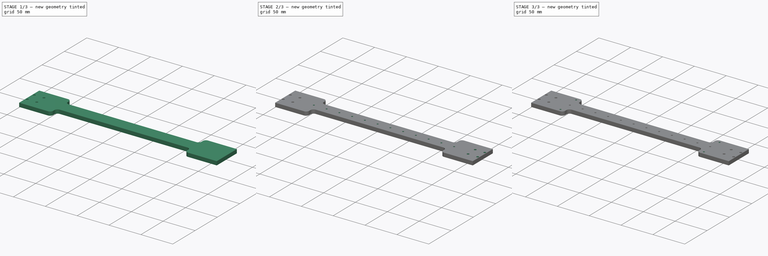
[diagram: build sequence overview — one tinted view per stage of 3, left to right]
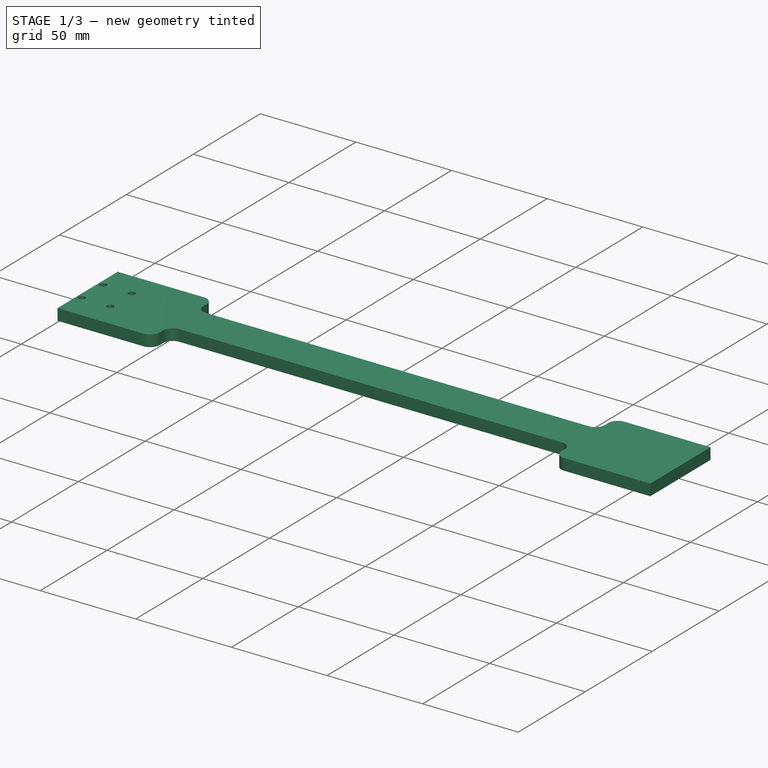
[diagram: stage 1 of 3 — iso view after this stage's code; geometry added in this stage tinted green]
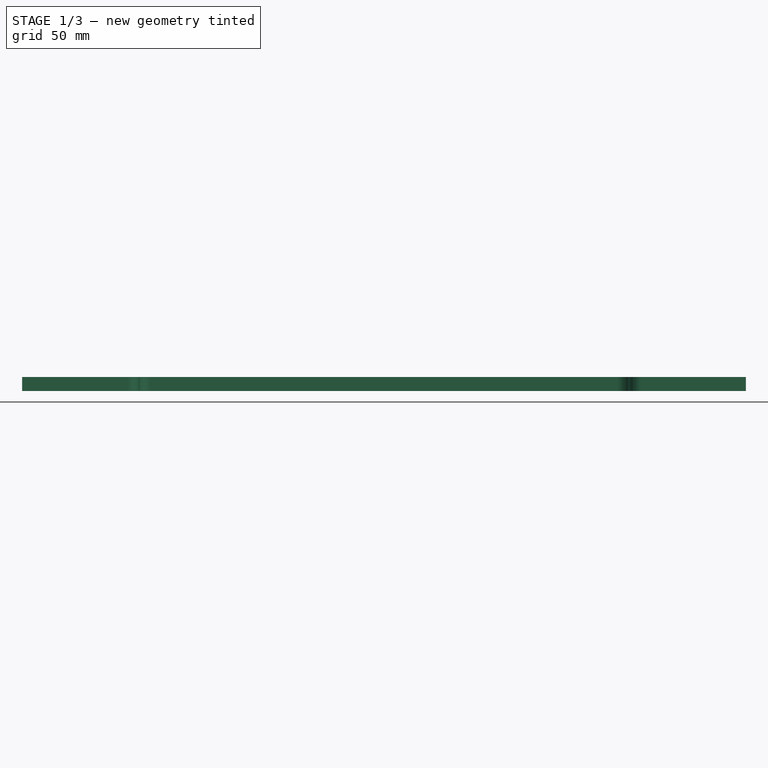
[diagram: stage 1 of 3 — front view after this stage's code; geometry added in this stage tinted green]
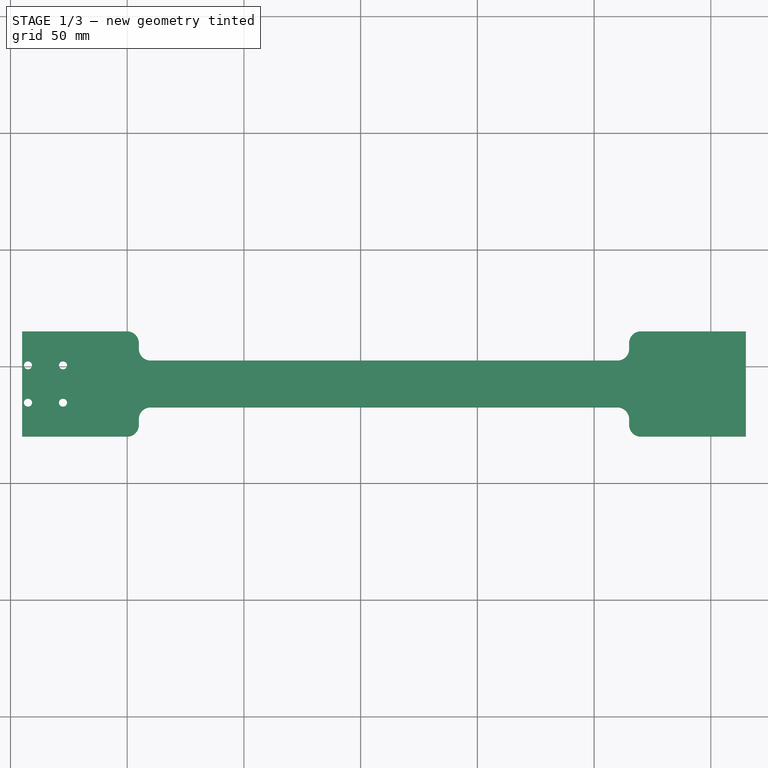
[diagram: stage 1 of 3 — top view after this stage's code; geometry added in this stage tinted green]
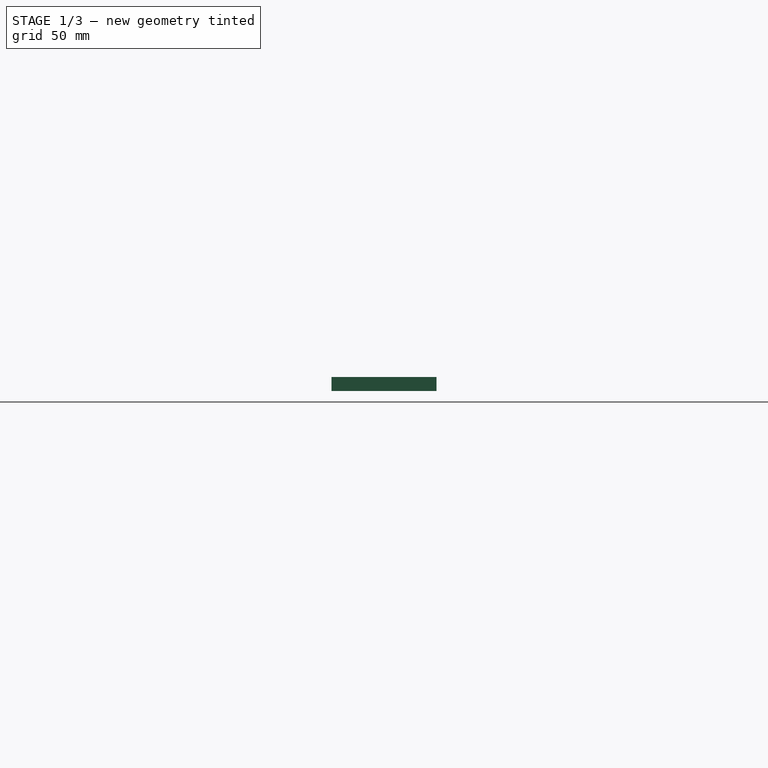
[diagram: stage 1 of 3 — right view after this stage's code; geometry added in this stage tinted green]
FCSTD DOCUMENT  (FreeCAD 0.18R16117 (Git))
Label: CoreXY
License: All rights reserved
LicenseURL: http://en.wikipedia.org/wiki/All_rights_reserved
objects: Sketcher::SketchObject×10, PartDesign::Pocket×7, PartDesign::Mirrored×6, PartDesign::ShapeBinder×2, PartDesign::Pad×2, PartDesign::LinearPattern×2, PartDesign::Body×2, PartDesign::MultiTransform×1
note: 41 computed .brp shape members not serialized (recipe doc carries the construction recipe); baked Part::Feature solids carry a one-line shape summary decoded from their .brp

FEATURE [Sketcher::SketchObject] Sketch008  label="Dimensions"
  MapMode = 5
  Support = -> [XY_Plane]
  sketch-geometry (8):
    g0: LineSegment StartX=0 StartY=0 StartZ=0 EndX=320 EndY=0 EndZ=0
    g1: LineSegment StartX=320 StartY=0 StartZ=0 EndX=320 EndY=320 EndZ=0
    g2: LineSegment StartX=320 StartY=320 StartZ=0 EndX=0 EndY=320 EndZ=0
    g3: LineSegment StartX=0 StartY=320 StartZ=0 EndX=0 EndY=0 EndZ=0
    g4: LineSegment StartX=15 StartY=320 StartZ=0 EndX=15 EndY=0 EndZ=0
    g5: LineSegment StartX=160 StartY=320 StartZ=0 EndX=160 EndY=0 EndZ=0
    g6: LineSegment StartX=32.5 StartY=320 StartZ=0 EndX=32.5 EndY=0 EndZ=0
    g7: LineSegment StartX=42.5 StartY=320 StartZ=0 EndX=42.5 EndY=0 EndZ=0
  constraints (27):
    c: Coincident(g0,g1)
    c: Coincident(g1,g2)
    c: Coincident(g2,g3)
    c: Coincident(g3,g0)
    c: Horizontal(g0)
    c: Horizontal(g2)
    c: Vertical(g1)
    c: Vertical(g3)
    c: Distance(g0) = 320
    c: Distance(g3) = 320
    c: PointOnObject(g4,g2)
    c: PointOnObject(g4,g0)
    c: Vertical(g4)
    c: DistanceX(g0,g4) = 15
    c: DistanceX(g0,g-1) = 0
    c: DistanceY(g0,g-1) = 0
    c: PointOnObject(g5,g2)
    c: Vertical(g5)
    c: Symmetric(g0,g0,g5)
    c: PointOnObject(g6,g2)
    c: PointOnObject(g6,g0)
    c: Vertical(g6)
    c: DistanceX(g4,g6) = 17.5
    c: PointOnObject(g7,g2)
    c: PointOnObject(g7,g0)
    c: Vertical(g7)
    c: DistanceX(g6,g7) = 10
FEATURE [PartDesign::ShapeBinder] ShapeBinder  label="Dimensions_ShapeBinder_Gantry"
  Support = -> [Sketch008]
  TraceSupport = false
FEATURE [Sketcher::SketchObject] Sketch004  label="GantryBase"
  ExternalGeometry = -> [ShapeBinder]
  MapMode = 5
  Support = -> [XY_Plane001]
  sketch-geometry (21):
    g0: LineSegment StartX=5 StartY=70 StartZ=0 EndX=5 EndY=115 EndZ=0
    g1: LineSegment StartX=5 StartY=115 StartZ=0 EndX=50 EndY=115 EndZ=0
    g2: LineSegment StartX=60 StartY=102.5 StartZ=0 EndX=260 EndY=102.5 EndZ=0
    g3: LineSegment StartX=270 StartY=115 StartZ=0 EndX=315 EndY=115 EndZ=0
    g4: LineSegment StartX=315 StartY=115 StartZ=0 EndX=315 EndY=70 EndZ=0
    g5: LineSegment StartX=315 StartY=70 StartZ=0 EndX=270 EndY=70 EndZ=0
    g6: LineSegment StartX=260 StartY=82.5 StartZ=0 EndX=60 EndY=82.5 EndZ=0
    g7: LineSegment StartX=50 StartY=70 StartZ=0 EndX=5 EndY=70 EndZ=0
    g8: LineSegment StartX=5 StartY=92.5 StartZ=0 EndX=315 EndY=92.5 EndZ=0
    g9: ArcOfCircle CenterX=50 CenterY=75 CenterZ=0 NormalX=0 NormalY=0 NormalZ=1 AngleXU=0 Radius=5 StartAngle=4.71239 EndAngle=6.28319
    g10: ArcOfCircle CenterX=60 CenterY=77.5 CenterZ=0 NormalX=0 NormalY=0 NormalZ=1 AngleXU=0 Radius=5 StartAngle=1.5708 EndAngle=3.14159
    g11: LineSegment StartX=55 StartY=77.5 StartZ=0 EndX=55 EndY=75 EndZ=0
    g12: ArcOfCircle CenterX=50 CenterY=110 CenterZ=0 NormalX=0 NormalY=0 NormalZ=1 AngleXU=0 Radius=5 StartAngle=0 EndAngle=1.5708
    g13: ArcOfCircle CenterX=60 CenterY=107.5 CenterZ=0 NormalX=0 NormalY=0 NormalZ=1 AngleXU=0 Radius=5 StartAngle=3.14159 EndAngle=4.71239
    g14: LineSegment StartX=55 StartY=110 StartZ=0 EndX=55 EndY=107.5 EndZ=0
    g15: ArcOfCircle CenterX=270 CenterY=110 CenterZ=0 NormalX=0 NormalY=0 NormalZ=1 AngleXU=0 Radius=5 StartAngle=1.5708 EndAngle=3.14159
    g16: ArcOfCircle CenterX=260 CenterY=107.5 CenterZ=0 NormalX=0 NormalY=0 NormalZ=1 AngleXU=0 Radius=5 StartAngle=4.71239 EndAngle=6.28318
    g17: LineSegment StartX=265 StartY=110 StartZ=0 EndX=265 EndY=107.5 EndZ=0
    g18: ArcOfCircle CenterX=260 CenterY=77.5 CenterZ=0 NormalX=0 NormalY=0 NormalZ=1 AngleXU=0 Radius=5.00001 StartAngle=2.93372e-08 EndAngle=1.5708
    g19: ArcOfCircle CenterX=270 CenterY=75 CenterZ=0 NormalX=0 NormalY=0 NormalZ=1 AngleXU=0 Radius=5 StartAngle=3.14159 EndAngle=4.71239
    g20: LineSegment StartX=265 StartY=77.5 StartZ=0 EndX=265 EndY=75 EndZ=0
  constraints (52):
    c: Vertical(g0)
    c: Coincident(g0,g1)
    c: Horizontal(g1)
    c: Coincident(g3,g4)
    c: Coincident(g4,g5)
    c: Horizontal(g7)
    c: Coincident(g7,g0)
    c: DistanceY(g0,g0) = 45
    c: DistanceY(g6,g2) = 20
    c: Vertical(g1,g7)
    c: DistanceX(g-3,g0) = 5
    c: DistanceY(g-3,g7) = 70
    c: Symmetric(g0,g0,g8)
    c: Symmetric(g2,g2,g-4)
    c: Symmetric(g6,g6,g-4)
    c: Symmetric(g3,g1,g-4)
    c: Symmetric(g5,g7,g-4)
    c: Symmetric(g4,g0,g-4)
    c: Symmetric(g3,g0,g-4)
    c: Symmetric(g8,g8,g-4)
    c: DistanceX(g1,g1) = 45
    c: Symmetric(g2,g6,g8)
    c: Tangent(g10,g6) = -1.5708
    c: Tangent(g9,g7) = 1.5708
    c: Tangent(g11,g10) = -1.5708
    c: Tangent(g11,g9) = 1.5708
    c: Radius(g9) = 5
    c: Vertical(g11)
    c: Radius(g10) = 5
    c: Tangent(g13,g2) = -1.5708
    c: Tangent(g14,g13) = -1.5708
    c: Tangent(g14,g12) = 1.5708
    c: Tangent(g12,g1) = 1.5708
    c: Symmetric(g13,g10,g8)
    c: Coincident(g15,g3)
    c: Coincident(g16,g2)
    c: Coincident(g17,g15)
    c: Coincident(g17,g16)
    c: Tangent(g3,g15)
    c: Tangent(g15,g17)
    c: Tangent(g17,g16)
    c: Tangent(g2,g16)
    c: Symmetric(g15,g12,g-4)
    c: Coincident(g18,g6)
    c: Coincident(g19,g5)
    c: Coincident(g20,g18)
    c: Coincident(g20,g19)
    c: Tangent(g6,g18)
    c: Tangent(g18,g20)
    c: Tangent(g20,g19)
    c: Tangent(g19,g5)
    c: Symmetric(g9,g19,g-4)
FEATURE [PartDesign::Pad] Pad001  label="GantryBase_Pad"
  Length = 6
  Length2 = 100
  Profile = -> Sketch004
  Type = 0
FEATURE [Sketcher::SketchObject] Sketch005  label="GantryMount"
  ExternalGeometry = -> [ShapeBinder,Sketch004]
  MapMode = 5
  Support = -> [XY_Plane001]
  sketch-geometry (5):
    g0: Circle CenterX=7.5 CenterY=84.5 CenterZ=0 NormalX=0 NormalY=0 NormalZ=1 AngleXU=0 Radius=1.75
    g1: Circle CenterX=22.5 CenterY=84.5 CenterZ=0 NormalX=0 NormalY=0 NormalZ=1 AngleXU=0 Radius=1.75
    g2: Circle CenterX=7.5 CenterY=100.5 CenterZ=0 NormalX=0 NormalY=0 NormalZ=1 AngleXU=0 Radius=1.75
    g3: Circle CenterX=22.5 CenterY=100.5 CenterZ=0 NormalX=0 NormalY=0 NormalZ=1 AngleXU=0 Radius=1.75
    g4: LineSegment [constr] StartX=160 StartY=113.5 StartZ=0 EndX=160 EndY=71.5 EndZ=0
  constraints (13):
    c: Diameter(g0) = 3.5
    c: Equal(g0,g1)
    c: Equal(g0,g2)
    c: Equal(g0,g3)
    c: Horizontal(g2,g3)
    c: Vertical(g3,g1)
    c: DistanceX(g0,g1) = 15
    c: DistanceY(g0,g2) = 16
    c: DistanceY(g4,g4) = 42
    c: PointOnObject(g4,g-4)
    c: Symmetric(g4,g4,g-6)
    c: Symmetric(g2,g0,g-6)
    c: Symmetric(g1,g0,g-3)
FEATURE [PartDesign::Pocket] Pocket003  label="GantryMount_Pocket"
  BaseFeature = -> Pad001
  Length = 5
  Length2 = 100
  Midplane = true
  Profile = -> Sketch005
  Type = 1
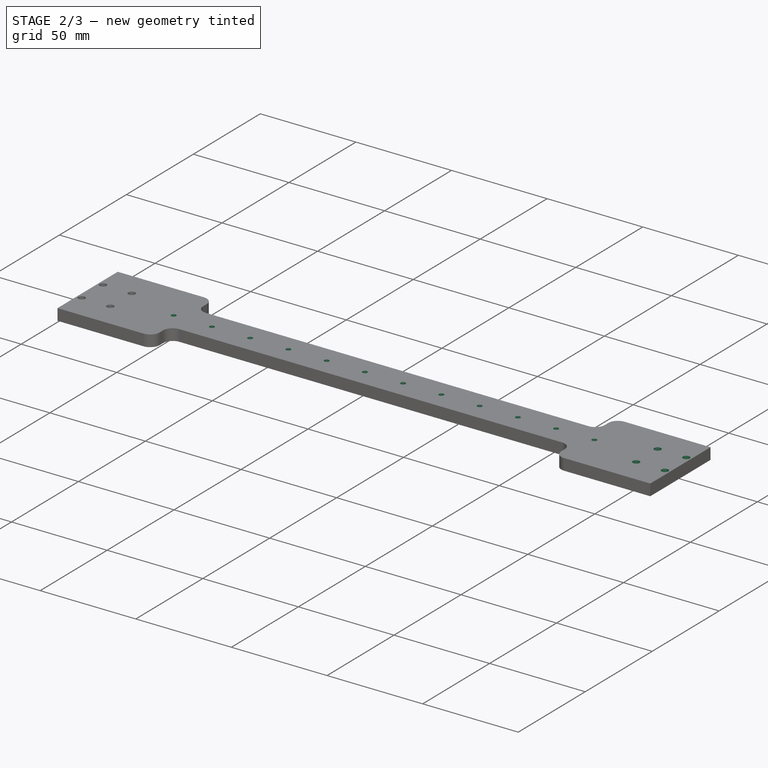
[diagram: stage 2 of 3 — iso view after this stage's code; geometry added in this stage tinted green]
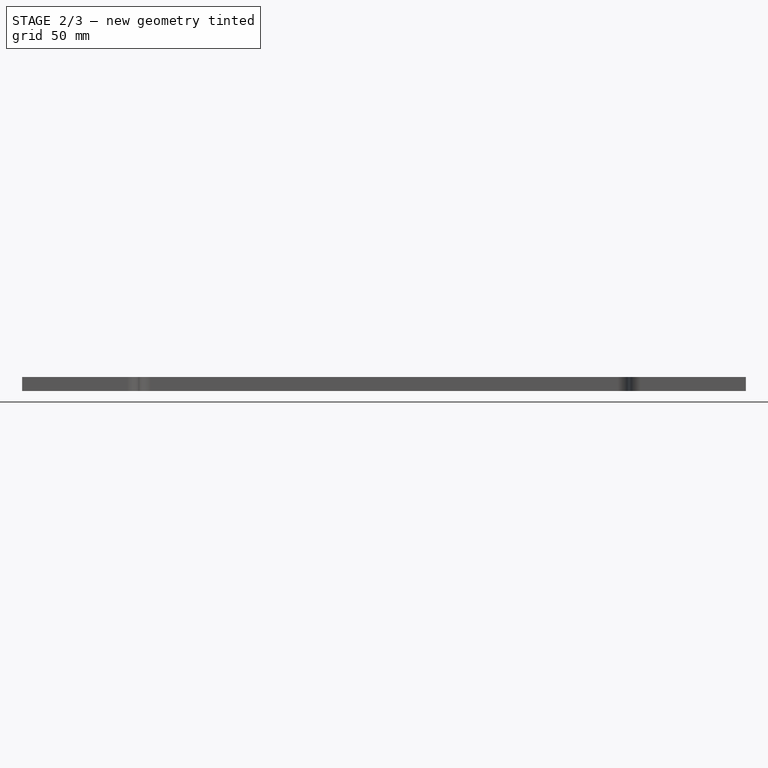
[diagram: stage 2 of 3 — front view after this stage's code; geometry added in this stage tinted green]
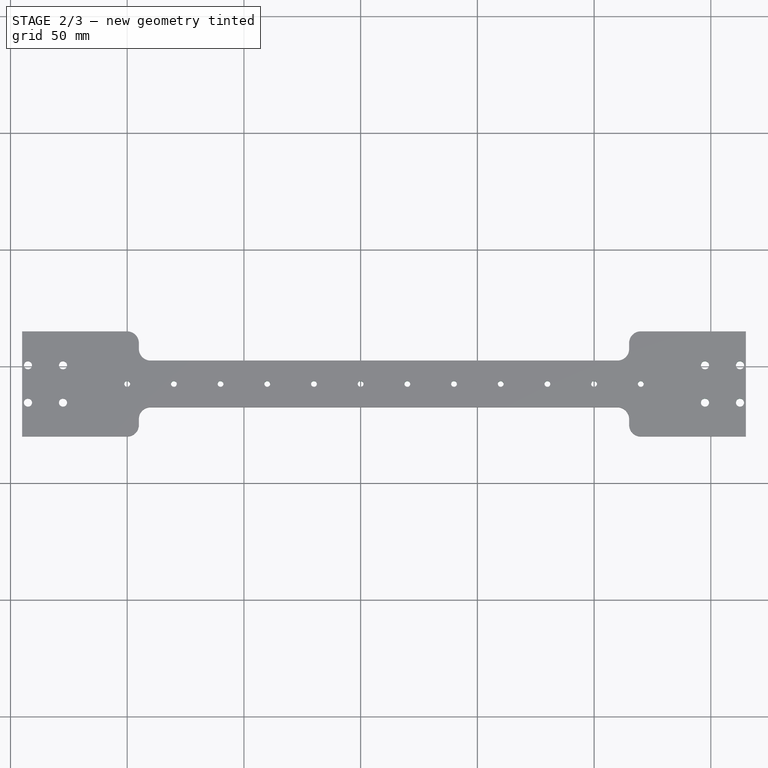
[diagram: stage 2 of 3 — top view after this stage's code; geometry added in this stage tinted green]
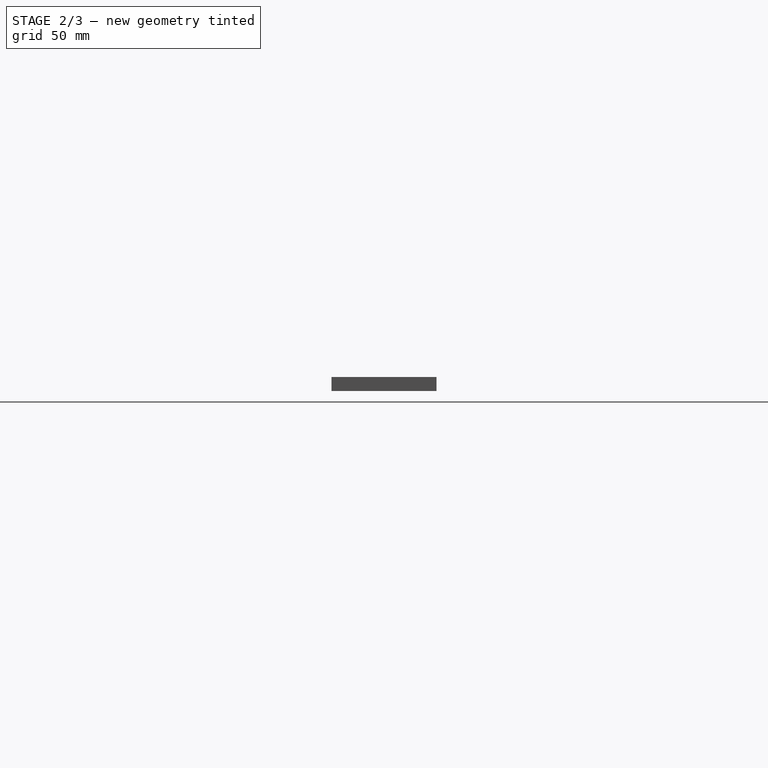
[diagram: stage 2 of 3 — right view after this stage's code; geometry added in this stage tinted green]
FEATURE [PartDesign::Mirrored] Mirrored002
  BaseFeature = -> Pocket003
  MirrorPlane = -> Sketch005 [Axis0]
  Originals = -> [Pocket003]
FEATURE [Sketcher::SketchObject] Sketch006  label="GantryRailMount"
  ExternalGeometry = -> [ShapeBinder,Sketch004]
  MapMode = 5
  Support = -> [XY_Plane001]
  sketch-geometry (1):
    g0: Circle CenterX=50 CenterY=92.5 CenterZ=0 NormalX=0 NormalY=0 NormalZ=1 AngleXU=0 Radius=1.25
  constraints (3):
    c: Diameter(g0) = 2.5
    c: Distance(g0,g-3) = 50
    c: PointOnObject(g0,g-4)
FEATURE [PartDesign::Pocket] Pocket004  label="GantryRailMount_Pocket"
  BaseFeature = -> Mirrored002
  Length = 5
  Length2 = 100
  Midplane = true
  Profile = -> Sketch006
  Type = 1
FEATURE [PartDesign::LinearPattern] LinearPattern001
  BaseFeature = -> Pocket004
  Direction = -> Sketch006 [H_Axis]
  Length = 220
  Occurrences = 12
  Originals = -> [Pocket004]
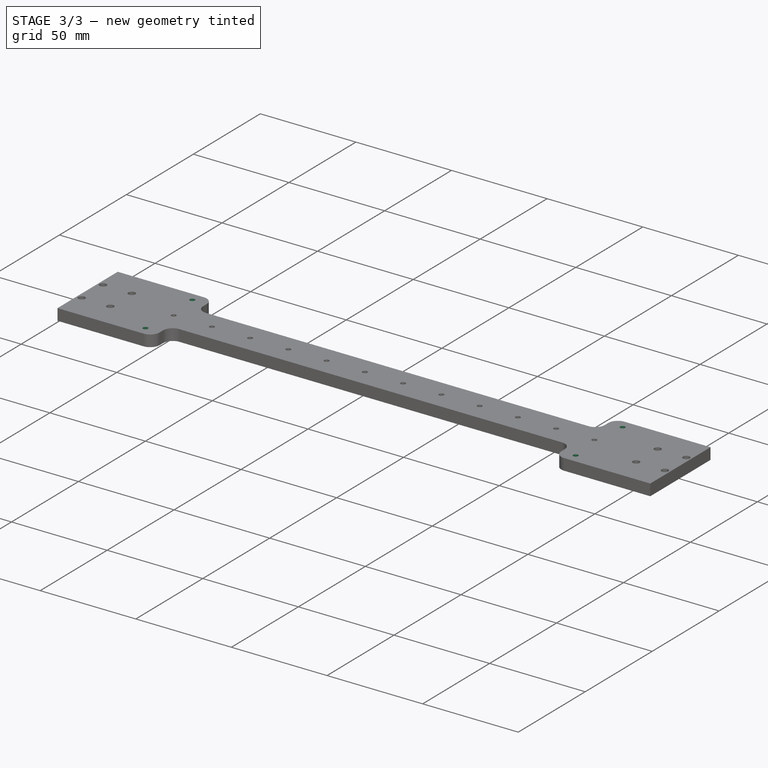
[diagram: stage 3 of 3 — iso view after this stage's code; geometry added in this stage tinted green]
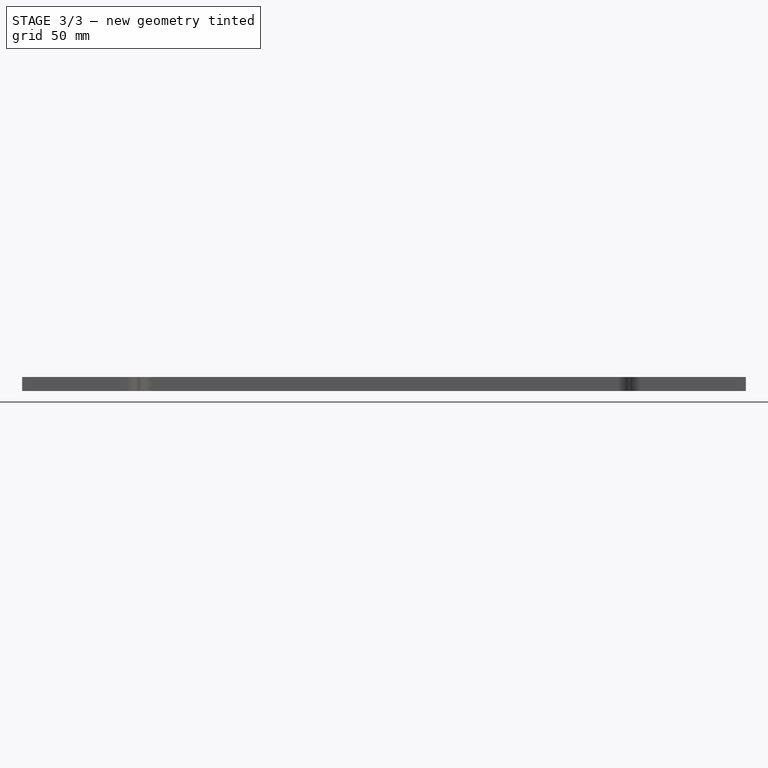
[diagram: stage 3 of 3 — front view after this stage's code; geometry added in this stage tinted green]
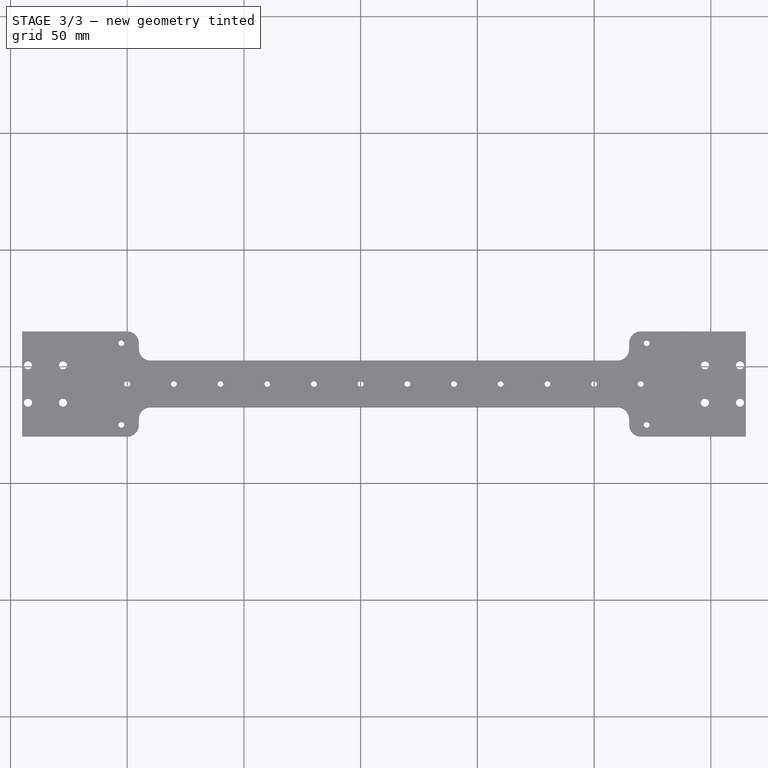
[diagram: stage 3 of 3 — top view after this stage's code; geometry added in this stage tinted green]
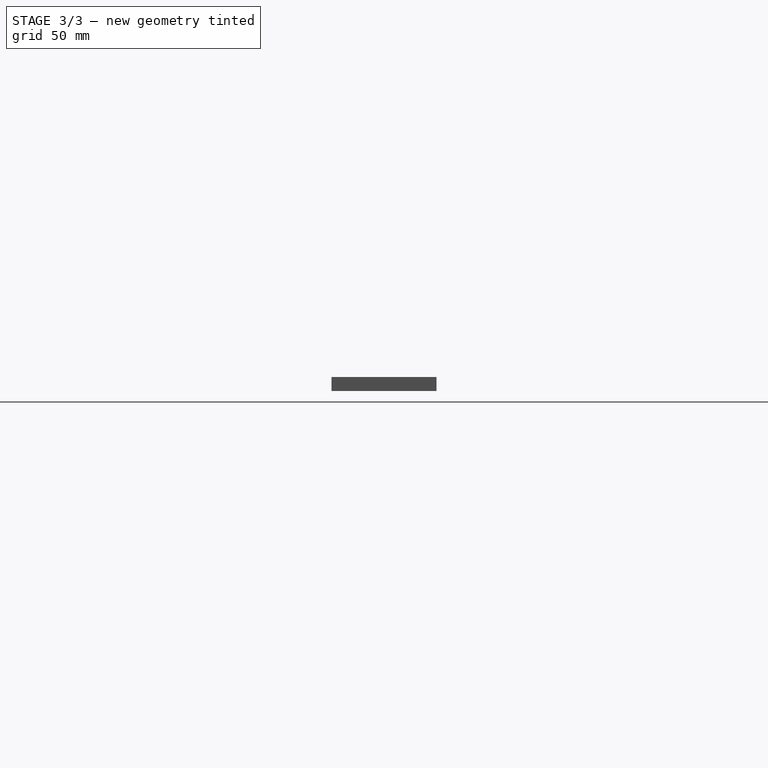
[diagram: stage 3 of 3 — right view after this stage's code; geometry added in this stage tinted green]
FEATURE [Sketcher::SketchObject] Sketch007  label="GantryBeltMount"
  ExternalGeometry = -> [ShapeBinder,Sketch004]
  MapMode = 5
  Support = -> [XY_Plane001]
  sketch-geometry (6):
    g0: Circle CenterX=47.5 CenterY=75 CenterZ=0 NormalX=0 NormalY=0 NormalZ=1 AngleXU=0 Radius=1.25
    g1: Circle CenterX=47.5 CenterY=110 CenterZ=0 NormalX=0 NormalY=0 NormalZ=1 AngleXU=0 Radius=1.25
    g2: LineSegment [constr] StartX=32.5 StartY=92.5 StartZ=0 EndX=37.5 EndY=92.5 EndZ=0
    g3: LineSegment [constr] StartX=37.5 StartY=92.5 StartZ=0 EndX=42.5 EndY=92.5 EndZ=0
    g4: LineSegment [constr] StartX=47.5 StartY=110 StartZ=0 EndX=42.5 EndY=110 EndZ=0
    g5: LineSegment [constr] StartX=160 StartY=102.5 StartZ=0 EndX=160 EndY=82.5 EndZ=0
  constraints (17):
    c: Diameter(g1) = 2.5
    c: Equal(g1,g0)
    c: Horizontal(g2)
    c: Coincident(g3,g2)
    c: Symmetric(g2,g3,g2)
    c: Coincident(g4,g1)
    c: Horizontal(g4)
    c: DistanceY(g0,g1) = 35
    c: Equal(g4,g3)
    c: DistanceY(g5,g5) = 20
    c: PointOnObject(g2,g-7)
    c: Symmetric(g1,g0,g-7)
    c: Symmetric(g5,g5,g-7)
    c: PointOnObject(g3,g-4)
    c: PointOnObject(g2,g-3)
    c: PointOnObject(g5,g-5)
    c: PointOnObject(g4,g-4)
FEATURE [PartDesign::Pocket] Pocket005  label="GantryBeltMount_Pocket"
  BaseFeature = -> LinearPattern001
  Length = 5
  Length2 = 100
  Midplane = true
  Profile = -> Sketch007
  Type = 1
FEATURE [PartDesign::ShapeBinder] ShapeBinder001  label="Dimensions_ShapeBinder_UShape"
  Support = -> [Sketch008]
  TraceSupport = false
FEATURE [Sketcher::SketchObject] Sketch  label="UShapeBase"
  ExternalGeometry = -> [ShapeBinder001]
  MapMode = 5
  Support = -> [XY_Plane]
  sketch-geometry (16):
    g0: ArcOfCircle CenterX=30 CenterY=30 CenterZ=0 NormalX=0 NormalY=0 NormalZ=1 AngleXU=0 Radius=30 StartAngle=3.14159 EndAngle=4.71239
    g1: LineSegment StartX=0 StartY=30 StartZ=0 EndX=0 EndY=290 EndZ=0
    g2: ArcOfCircle CenterX=30 CenterY=290 CenterZ=0 NormalX=0 NormalY=0 NormalZ=1 AngleXU=0 Radius=30 StartAngle=1.5708 EndAngle=3.14159
    g3: LineSegment StartX=30 StartY=320 StartZ=0 EndX=42.5 EndY=320 EndZ=0
    g4: LineSegment StartX=42.5 StartY=320 StartZ=0 EndX=42.5 EndY=65 EndZ=0
    g5: ArcOfCircle CenterX=52.5 CenterY=65 CenterZ=0 NormalX=0 NormalY=0 NormalZ=1 AngleXU=0 Radius=10 StartAngle=3.14159 EndAngle=4.71239
    g6: ArcOfCircle CenterX=290 CenterY=30 CenterZ=0 NormalX=0 NormalY=0 NormalZ=1 AngleXU=0 Radius=30 StartAngle=4.71239 EndAngle=6.28319
    g7: LineSegment StartX=320 StartY=30 StartZ=0 EndX=320 EndY=290 EndZ=0
    g8: ArcOfCircle CenterX=290 CenterY=290 CenterZ=0 NormalX=0 NormalY=0 NormalZ=1 AngleXU=0 Radius=30 StartAngle=5e-16 EndAngle=1.5708
    g9: LineSegment StartX=290 StartY=320 StartZ=0 EndX=277.5 EndY=320 EndZ=0
    g10: LineSegment StartX=277.5 StartY=320 StartZ=0 EndX=277.5 EndY=65 EndZ=0
    g11: ArcOfCircle CenterX=267.5 CenterY=65 CenterZ=0 NormalX=0 NormalY=0 NormalZ=1 AngleXU=0 Radius=10 StartAngle=4.71239 EndAngle=6.28319
    g12: LineSegment StartX=52.5 StartY=55 StartZ=0 EndX=160 EndY=55 EndZ=0
    g13: LineSegment StartX=160 StartY=55 StartZ=0 EndX=267.5 EndY=55 EndZ=0
    g14: LineSegment StartX=30 StartY=0 StartZ=0 EndX=160 EndY=0 EndZ=0
    g15: LineSegment StartX=160 StartY=0 StartZ=0 EndX=290 EndY=0 EndZ=0
  constraints (40):
    c: Tangent(g0,g1) = 1.5708
    c: Tangent(g1,g2) = 1.5708
    c: Tangent(g2,g3) = 1.5708
    c: Tangent(g4,g5) = -1.5708
    c: Radius(g0) = 30
    c: Vertical(g1)
    c: Horizontal(g3)
    c: Vertical(g4)
    c: Radius(g2) = 30
    c: Radius(g5) = 10
    c: Coincident(g3,g4)
    c: Tangent(g6,g7) = -1.5708
    c: Tangent(g7,g8) = -1.5708
    c: Tangent(g8,g9) = -1.5708
    c: Coincident(g9,g10)
    c: Vertical(g10)
    c: Tangent(g10,g11) = 1.5708
    c: Equal(g11,g5)
    c: Equal(g10,g4)
    c: Equal(g3,g9)
    c: Horizontal(g9)
    c: Equal(g8,g2)
    c: Equal(g6,g0)
    c: Vertical(g7)
    c: Tangent(g5,g12) = -1.5708
    c: Coincident(g12,g13)
    c: Tangent(g0,g14) = -1.5708
    c: Coincident(g14,g15)
    c: Vertical(g14,g12)
    c: Symmetric(g5,g11,g12)
    c: Symmetric(g0,g6,g14)
    c: Tangent(g13,g11) = -1.5708
    c: Tangent(g15,g6) = -1.5708
    c: Horizontal(g14)
    c: Distance(g12,g14) = 55
    c: PointOnObject(g0,g-4)
    c: PointOnObject(g0,g-3)
    c: PointOnObject(g2,g-5)
    c: PointOnObject(g6,g-6)
    c: PointOnObject(g3,g-7)
FEATURE [PartDesign::Pad] Pad  label="UShapeBase_Pad"
  Length = 6
  Length2 = 100
  Profile = -> Sketch
  Type = 0
FEATURE [Sketcher::SketchObject] Sketch001  label="UShapeRailMount"
  ExternalGeometry = -> [Sketch,ShapeBinder001]
  MapMode = 5
  Support = -> [XY_Plane]
  sketch-geometry (2):
    g0: Circle CenterX=15 CenterY=50 CenterZ=0 NormalX=0 NormalY=0 NormalZ=1 AngleXU=0 Radius=1.25
    g1: LineSegment [constr] StartX=160 StartY=55 StartZ=0 EndX=160 EndY=0 EndZ=0
  constraints (5):
    c: Diameter(g0) = 2.5
    c: Coincident(g1,g-3)
    c: Coincident(g1,g-4)
    c: PointOnObject(g0,g-5)
    c: DistanceY(g-5,g0) = 50
FEATURE [PartDesign::Pocket] Pocket  label="UShapeRailMount_Pocket"
  BaseFeature = -> Pad
  Length = 5
  Length2 = 100
  Midplane = true
  Profile = -> Sketch001
  Type = 1
FEATURE [PartDesign::Mirrored] Mirrored
  MirrorPlane = -> Sketch001 [Axis0]
FEATURE [PartDesign::LinearPattern] LinearPattern
  Direction = -> Sketch001 [V_Axis]
  Length = 220
  Occurrences = 12
FEATURE [Sketcher::SketchObject] Sketch003  label="UShapeBeltMount"
  ExternalGeometry = -> [ShapeBinder001]
  MapMode = 5
  Support = -> [XY_Plane]
  sketch-geometry (9):
    g0: Circle CenterX=37.5 CenterY=40 CenterZ=0 NormalX=0 NormalY=0 NormalZ=1 AngleXU=0 Radius=1.25
    g1: Circle CenterX=37.5 CenterY=305 CenterZ=0 NormalX=0 NormalY=0 NormalZ=1 AngleXU=0 Radius=1.25
    g2: LineSegment [constr] StartX=32.5 StartY=305 StartZ=0 EndX=42.5 EndY=305 EndZ=0
    g3: LineSegment [constr] StartX=32.5 StartY=40 StartZ=0 EndX=37.5 EndY=40 EndZ=0
    g4: LineSegment [constr] StartX=42.5 StartY=40 StartZ=0 EndX=37.5 EndY=40 EndZ=0
    g5: Circle CenterX=47.5 CenterY=15 CenterZ=0 NormalX=0 NormalY=0 NormalZ=1 AngleXU=0 Radius=1.25
    g6: LineSegment [constr] StartX=42.5 StartY=15 StartZ=0 EndX=47.5 EndY=15 EndZ=0
    g7: Circle CenterX=37.5 CenterY=15 CenterZ=0 NormalX=0 NormalY=0 NormalZ=1 AngleXU=0 Radius=1.25
    g8: LineSegment [constr] StartX=160 StartY=0 StartZ=0 EndX=160 EndY=50 EndZ=0
  constraints (26):
    c: Distance(g0,g-3) = 40
    c: Diameter(g0) = 2.5
    c: Equal(g0,g1)
    c: PointOnObject(g2,g-4)
    c: PointOnObject(g2,g-5)
    c: Horizontal(g2)
    c: Symmetric(g2,g2,g1)
    c: Distance(g1,g-6) = 15
    c: PointOnObject(g3,g-4)
    c: Coincident(g3,g0)
    c: Horizontal(g3)
    c: PointOnObject(g4,g-5)
    c: Coincident(g4,g0)
    c: Symmetric(g3,g4,g0)
    c: Diameter(g5) = 2.5
    c: PointOnObject(g6,g-5)
    c: Coincident(g6,g5)
    c: Horizontal(g6)
    c: Equal(g6,g4)
    c: Distance(g5,g-3) = 15
    c: Diameter(g7) = 2.5
    c: Coincident(g8,g-7)
    c: Vertical(g8)
    c: Distance(g8) = 50
    c: DistanceY(g-5,g7) = 15
    c: Vertical(g7,g0)
FEATURE [PartDesign::Mirrored] Mirrored004  label="GantryBeltMount_Pocket_Mirrored"
  BaseFeature = -> Pocket005
  MirrorPlane = -> Sketch007 [Axis3]
  Originals = -> [Pocket005]
FEATURE [PartDesign::Body] Body001  label="Gantry"
  Group = -> [Sketch004,Pad001,Sketch005,Pocket003,Mirrored002,Sketch006,Pocket004,LinearPattern001,Sketch007,Pocket005,ShapeBinder,Mirrored004]
  Origin = -> Origin001
  Tip = -> Mirrored004
FEATURE [PartDesign::Body] Body  label="UShape"
  Group = -> [Sketch,Pad,Sketch001,Pocket,Sketch002,Pocket001,MultiTransform,Mirrored,LinearPattern,Mirrored001,Sketch003,Pocket002,ShapeBinder001,Mirrored003,Sketch009,Pocket006,Mirrored005]
  Origin = -> Origin
  Tip = -> Mirrored005
FEATURE [Sketcher::SketchObject] Sketch002  label="UShapeNemaMount"
  ExternalGeometry = -> [Sketch,ShapeBinder001]
  MapMode = 2
  Support = -> [Body]
  sketch-geometry (5):
    g0: Circle CenterX=70 CenterY=15 CenterZ=0 NormalX=0 NormalY=0 NormalZ=1 AngleXU=0 Radius=1.75
    g1: Circle CenterX=101 CenterY=15 CenterZ=0 NormalX=0 NormalY=0 NormalZ=1 AngleXU=0 Radius=1.75
    g2: Circle CenterX=70 CenterY=46 CenterZ=0 NormalX=0 NormalY=0 NormalZ=1 AngleXU=0 Radius=1.75
    g3: Circle CenterX=101 CenterY=46 CenterZ=0 NormalX=0 NormalY=0 NormalZ=1 AngleXU=0 Radius=1.75
    g4: LineSegment [constr] StartX=160 StartY=55 StartZ=0 EndX=160 EndY=0 EndZ=0
  constraints (15):
    c: Diameter(g0) = 3.5
    c: Equal(g0,g1)
    c: Equal(g0,g2)
    c: Equal(g0,g3)
    c: Vertical(g2,g0)
    c: Horizontal(g2,g3)
    c: Vertical(g3,g1)
    c: Horizontal(g1,g0)
    c: DistanceY(g0,g2) = 31
    c: Distance(g0,g1) = 31
    c: Coincident(g4,g-3)
    c: PointOnObject(g4,g-1)
    c: Vertical(g4)
    c: Distance(g0,g-5) = 70
    c: Distance(g0,g-4) = 15
FEATURE [PartDesign::Pocket] Pocket001  label="UShapeNemaMount_Pocket"
  BaseFeature = -> Pocket
  Length = 5
  Length2 = 100
  Midplane = true
  Profile = -> Sketch002
  Type = 1
FEATURE [PartDesign::MultiTransform] MultiTransform  label="UShapeRailMount_Pocket_MultiTransform"
  BaseFeature = -> Pocket001
  Originals = -> [Pocket]
  Transformations = -> [Mirrored,LinearPattern]
FEATURE [PartDesign::Mirrored] Mirrored001  label="UShapeNemaMount_Pocket_Mirrored"
  BaseFeature = -> MultiTransform
  MirrorPlane = -> Sketch002 [Axis0]
  Originals = -> [Pocket001]
FEATURE [PartDesign::Pocket] Pocket002  label="UShapeBeltMount_Pocket"
  BaseFeature = -> Mirrored001
  Length = 5
  Length2 = 100
  Midplane = true
  Profile = -> Sketch003
  Type = 1
FEATURE [PartDesign::Mirrored] Mirrored003  label="UShapeBeltMount_Pocket_Mirrored"
  BaseFeature = -> Pocket002
  MirrorPlane = -> Sketch003 [Axis4]
  Originals = -> [Pocket002]
FEATURE [Sketcher::SketchObject] Sketch009  label="UShapeMount"
  ExternalGeometry = -> [ShapeBinder001]
  MapMode = 2
  Support = -> [Body]
  sketch-geometry (4):
    g0: Circle CenterX=15 CenterY=305 CenterZ=0 NormalX=0 NormalY=0 NormalZ=1 AngleXU=0 Radius=4.5
    g1: Circle CenterX=15 CenterY=15 CenterZ=0 NormalX=0 NormalY=0 NormalZ=1 AngleXU=0 Radius=4.5
    g2: LineSegment [constr] StartX=0 StartY=160 StartZ=0 EndX=320 EndY=160 EndZ=0
    g3: LineSegment [constr] StartX=160 StartY=320 StartZ=0 EndX=160 EndY=0 EndZ=0
  constraints (9):
    c: Diameter(g1) = 9
    c: Equal(g1,g0)
    c: DistanceX(g-1,g1) = 15
    c: DistanceY(g-1,g1) = 15
    c: Symmetric(g-4,g-1,g2)
    c: Symmetric(g-3,g-4,g2)
    c: Symmetric(g0,g1,g2)
    c: Coincident(g3,g-5)
    c: Coincident(g3,g-5)
FEATURE [PartDesign::Pocket] Pocket006  label="UShapeMountPocket"
  BaseFeature = -> Mirrored003
  Length = 5
  Length2 = 100
  Midplane = true
  Profile = -> Sketch009
  Type = 1
FEATURE [PartDesign::Mirrored] Mirrored005  label="UShapeMountPocketMirrored"
  BaseFeature = -> Pocket006
  MirrorPlane = -> Sketch009 [Axis1]
  Originals = -> [Pocket006]
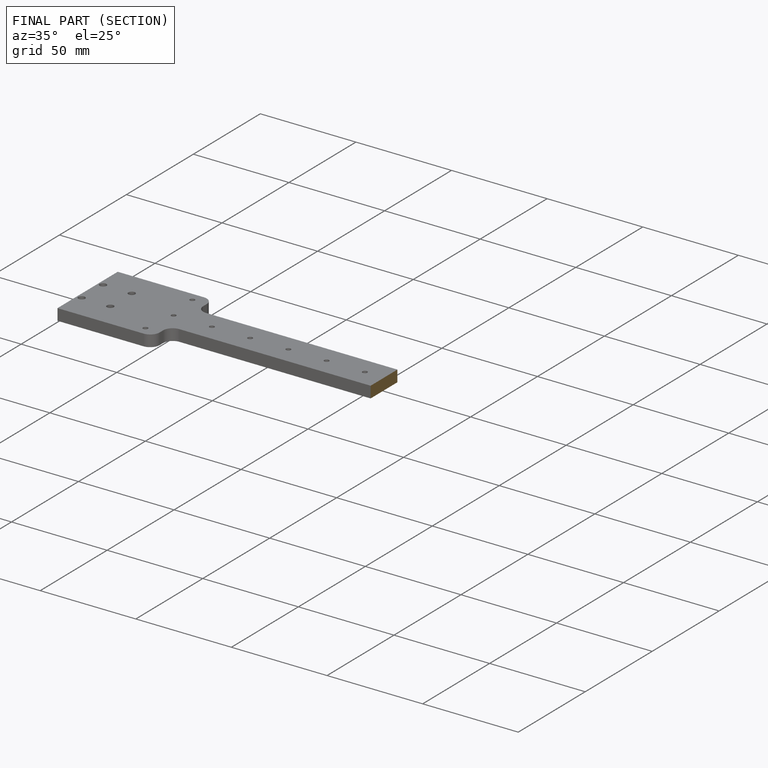
[diagram: finished part — half-section view (interior)]
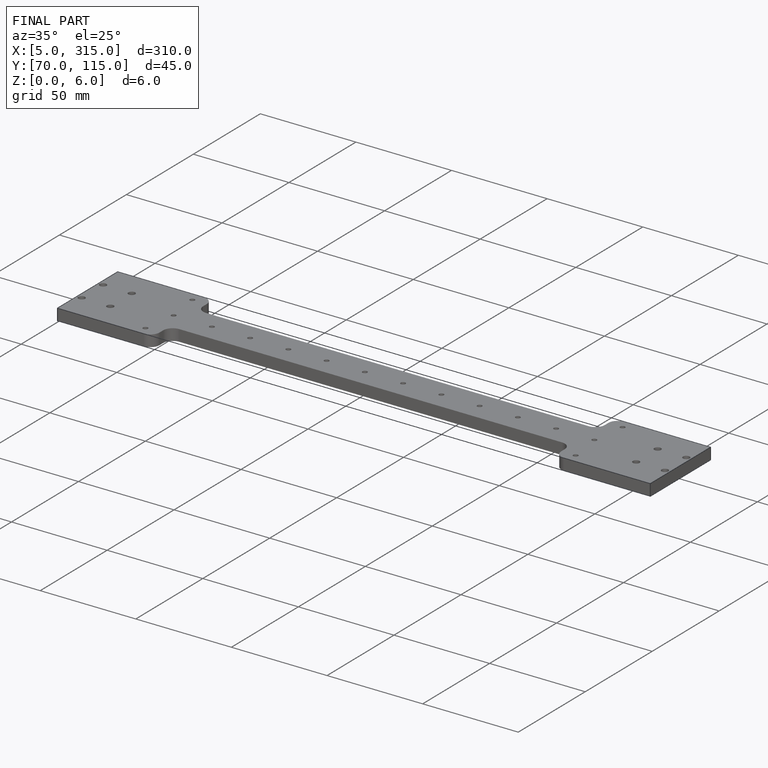
[diagram: finished part — iso view with bounding-box wireframe]
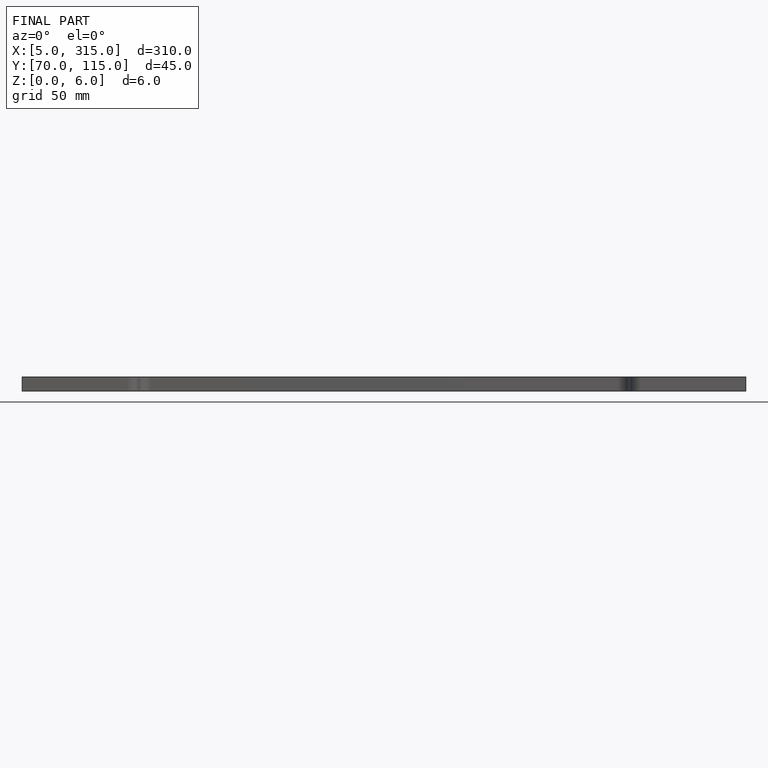
[diagram: finished part — front view with bounding-box wireframe]
